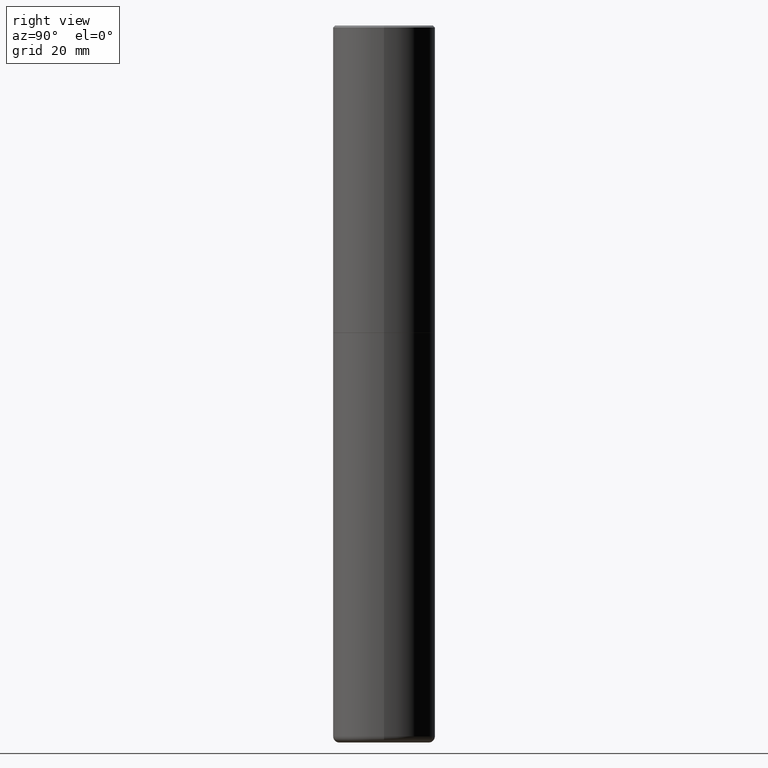
[diagram: clean part render]
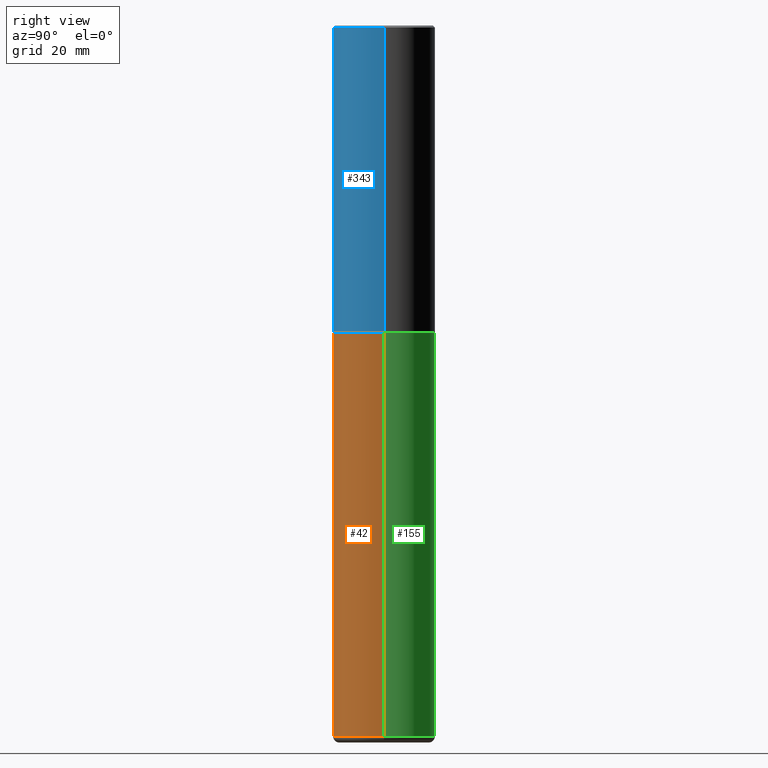
[diagram: same view with three faces highlighted in distinct colors, each labeled with its STEP entity id]
A machine part, right view with three faces highlighted in distinct colors.
Their STEP definitions:

[orange] entity #42 — the highlighted cylindrical surface (partial cylindrical patch) has radius 12.7 mm, axis along (-0, 0, 1).
#7 = DIRECTION ( 'NONE',  ( 1.000000000000000000, -6.982962677686266711E-15, 0.000000000000000000 ) ) ;
#12 = LINE ( 'NONE', #134, #163 ) ;
#16 = VERTEX_POINT ( 'NONE', #216 ) ;
#38 = CARTESIAN_POINT ( 'NONE',  ( 0.5000000000000002220, -2.772236183041456530E-14, -6.939999999999999503 ) ) ;
#42 = ADVANCED_FACE ( 'NONE', ( #105 ), #174, .T. ) ;
#47 = EDGE_CURVE ( 'NONE', #238, #16, #405, .T. ) ;
#51 = AXIS2_PLACEMENT_3D ( 'NONE', #408, #375, #412 ) ;
#52 = VECTOR ( 'NONE', #164, 39.37007874015748143 ) ;
#73 = CIRCLE ( 'NONE', #329, 0.5000000000000001110 ) ;
#79 = ORIENTED_EDGE ( 'NONE', *, *, #240, .F. ) ;
#84 = VERTEX_POINT ( 'NONE', #297 ) ;
#103 = DIRECTION ( 'NONE',  ( -2.445468806185136877E-29, 3.491481338843145188E-15, 1.000000000000000000 ) ) ;
#105 = FACE_OUTER_BOUND ( 'NONE', #150, .T. ) ;
#134 = CARTESIAN_POINT ( 'NONE',  ( -0.5000000000000000000, 3.552713678800500929E-15, -2.459467545127452891E-29 ) ) ;
#141 = CARTESIAN_POINT ( 'NONE',  ( -0.5000000000000000000, -1.379994857524993085E-14, -2.999999999999999556 ) ) ;
#150 = EDGE_LOOP ( 'NONE', ( #79, #342, #293, #400 ) ) ;
#163 = VECTOR ( 'NONE', #103, 39.37007874015748143 ) ;
#164 = DIRECTION ( 'NONE',  ( -2.445468806185136877E-29, 3.491481338843145188E-15, 1.000000000000000000 ) ) ;
#174 = CYLINDRICAL_SURFACE ( 'NONE', #51, 0.5000000000000000000 ) ;
#179 = EDGE_CURVE ( 'NONE', #201, #16, #189, .T. ) ;
#189 = LINE ( 'NONE', #324, #52 ) ;
#201 = VERTEX_POINT ( 'NONE', #38 ) ;
#216 = CARTESIAN_POINT ( 'NONE',  ( 0.5000000000000000000, -1.396592535537256813E-14, -2.999999999999999556 ) ) ;
#238 = VERTEX_POINT ( 'NONE', #141 ) ;
#240 = EDGE_CURVE ( 'NONE', #84, #238, #12, .T. ) ;
#248 = CARTESIAN_POINT ( 'NONE',  ( 1.697155351492484915E-28, -2.423088049157142879E-14, -6.939999999999999503 ) ) ;
#261 = EDGE_CURVE ( 'NONE', #84, #201, #73, .T. ) ;
#264 = DIRECTION ( 'NONE',  ( -2.445468806185136597E-29, 3.491481338843145583E-15, 1.000000000000000000 ) ) ;
#293 = ORIENTED_EDGE ( 'NONE', *, *, #179, .T. ) ;
#297 = CARTESIAN_POINT ( 'NONE',  ( -0.5000000000000002220, -2.067816681277092470E-14, -6.939999999999999503 ) ) ;
#309 = DIRECTION ( 'NONE',  ( 1.000000000000000000, -6.982962677686269077E-15, 0.000000000000000000 ) ) ;
#324 = CARTESIAN_POINT ( 'NONE',  ( 0.5000000000000000000, -3.491481338843133355E-15, 2.438088387897967896E-29 ) ) ;
#329 = AXIS2_PLACEMENT_3D ( 'NONE', #248, #369, #309 ) ;
#342 = ORIENTED_EDGE ( 'NONE', *, *, #261, .T. ) ;
#353 = CARTESIAN_POINT ( 'NONE',  ( 7.336406418555408669E-29, -1.047444401652943478E-14, -2.999999999999999556 ) ) ;
#369 = DIRECTION ( 'NONE',  ( -2.445468806185136597E-29, 3.491481338843145583E-15, 1.000000000000000000 ) ) ;
#371 = AXIS2_PLACEMENT_3D ( 'NONE', #353, #264, #7 ) ;
#375 = DIRECTION ( 'NONE',  ( -2.445468806185136597E-29, 3.491481338843145583E-15, 1.000000000000000000 ) ) ;
#400 = ORIENTED_EDGE ( 'NONE', *, *, #47, .F. ) ;
#405 = CIRCLE ( 'NONE', #371, 0.5000000000000000000 ) ;
#408 = CARTESIAN_POINT ( 'NONE',  ( 0.000000000000000000, 0.000000000000000000, 0.000000000000000000 ) ) ;
#412 = DIRECTION ( 'NONE',  ( 1.000000000000000000, -6.982962677686266711E-15, 4.876176775795935793E-29 ) ) ;

[blue] entity #343 — the highlighted cylindrical surface (partial cylindrical patch) has radius 12.7 mm, axis along (-0, 0, 1).
#10 = DIRECTION ( 'NONE',  ( -2.445468806185136597E-29, 3.491481338843145583E-15, 1.000000000000000000 ) ) ;
#13 = DIRECTION ( 'NONE',  ( -2.445468806185136597E-29, 3.491481338843145583E-15, 1.000000000000000000 ) ) ;
#22 = EDGE_CURVE ( 'NONE', #258, #331, #172, .T. ) ;
#25 = EDGE_CURVE ( 'NONE', #258, #281, #99, .T. ) ;
#44 = CARTESIAN_POINT ( 'NONE',  ( 0.5000000000000002220, -3.491481338843134933E-15, 2.438088387897969017E-29 ) ) ;
#78 = ORIENTED_EDGE ( 'NONE', *, *, #213, .F. ) ;
#93 = DIRECTION ( 'NONE',  ( 1.000000000000000000, -6.982962677686265922E-15, 0.000000000000000000 ) ) ;
#99 = CIRCLE ( 'NONE', #415, 0.5000000000000003331 ) ;
#104 = DIRECTION ( 'NONE',  ( 1.000000000000000000, -6.982962677686266711E-15, 4.876176775795935793E-29 ) ) ;
#109 = CARTESIAN_POINT ( 'NONE',  ( -0.5000000000000003331, -1.717677402183223054E-15, -2.999000000000000110 ) ) ;
#113 = CIRCLE ( 'NONE', #351, 0.5000000000000001110 ) ;
#132 = VECTOR ( 'NONE', #304, 39.37007874015748143 ) ;
#133 = EDGE_LOOP ( 'NONE', ( #136, #146, #187, #78 ) ) ;
#135 = DIRECTION ( 'NONE',  ( 1.000000000000000000, -6.982962677686265922E-15, 0.000000000000000000 ) ) ;
#136 = ORIENTED_EDGE ( 'NONE', *, *, #22, .F. ) ;
#138 = LINE ( 'NONE', #44, #132 ) ;
#146 = ORIENTED_EDGE ( 'NONE', *, *, #25, .T. ) ;
#169 = AXIS2_PLACEMENT_3D ( 'NONE', #367, #10, #104 ) ;
#171 = CARTESIAN_POINT ( 'NONE',  ( 0.5000000000000001110, -3.500078625662629868E-15, -0.02000000000000010797 ) ) ;
#172 = LINE ( 'NONE', #207, #283 ) ;
#187 = ORIENTED_EDGE ( 'NONE', *, *, #410, .T. ) ;
#207 = CARTESIAN_POINT ( 'NONE',  ( -0.5000000000000002220, 3.552713678800502507E-15, -2.459467545127454012E-29 ) ) ;
#213 = EDGE_CURVE ( 'NONE', #331, #395, #113, .T. ) ;
#219 = CARTESIAN_POINT ( 'NONE',  ( -0.5000000000000001110, 3.421651712066270452E-15, -0.02000000000000010797 ) ) ;
#258 = VERTEX_POINT ( 'NONE', #109 ) ;
#262 = CARTESIAN_POINT ( 'NONE',  ( 4.890937612370299433E-31, -6.982962677686328587E-17, -0.02000000000000010797 ) ) ;
#281 = VERTEX_POINT ( 'NONE', #339 ) ;
#283 = VECTOR ( 'NONE', #301, 39.37007874015748143 ) ;
#298 = CYLINDRICAL_SURFACE ( 'NONE', #169, 0.5000000000000002220 ) ;
#301 = DIRECTION ( 'NONE',  ( -2.445468806185136877E-29, 3.491481338843145188E-15, 1.000000000000000000 ) ) ;
#304 = DIRECTION ( 'NONE',  ( -2.445468806185136877E-29, 3.491481338843145188E-15, 1.000000000000000000 ) ) ;
#331 = VERTEX_POINT ( 'NONE', #219 ) ;
#333 = CARTESIAN_POINT ( 'NONE',  ( 7.333960949749225308E-29, -1.047095253519059177E-14, -2.999000000000000110 ) ) ;
#339 = CARTESIAN_POINT ( 'NONE',  ( 0.5000000000000003331, -1.396243387403372828E-14, -2.999000000000000110 ) ) ;
#343 = ADVANCED_FACE ( 'NONE', ( #390 ), #298, .T. ) ;
#351 = AXIS2_PLACEMENT_3D ( 'NONE', #262, #380, #93 ) ;
#367 = CARTESIAN_POINT ( 'NONE',  ( 0.000000000000000000, 0.000000000000000000, 0.000000000000000000 ) ) ;
#380 = DIRECTION ( 'NONE',  ( -2.445468806185136597E-29, 3.491481338843145583E-15, 1.000000000000000000 ) ) ;
#390 = FACE_OUTER_BOUND ( 'NONE', #133, .T. ) ;
#395 = VERTEX_POINT ( 'NONE', #171 ) ;
#410 = EDGE_CURVE ( 'NONE', #281, #395, #138, .T. ) ;
#415 = AXIS2_PLACEMENT_3D ( 'NONE', #333, #13, #135 ) ;

[green] entity #155 — the highlighted cylindrical surface (partial cylindrical patch) has radius 12.7 mm, axis along (-0, 0, 1).
#9 = DIRECTION ( 'NONE',  ( 1.000000000000000000, -6.982962677686269077E-15, 0.000000000000000000 ) ) ;
#12 = LINE ( 'NONE', #134, #163 ) ;
#16 = VERTEX_POINT ( 'NONE', #216 ) ;
#20 = EDGE_LOOP ( 'NONE', ( #276, #247, #108, #43 ) ) ;
#24 = AXIS2_PLACEMENT_3D ( 'NONE', #320, #356, #92 ) ;
#33 = DIRECTION ( 'NONE',  ( -2.445468806185136597E-29, 3.491481338843145583E-15, 1.000000000000000000 ) ) ;
#38 = CARTESIAN_POINT ( 'NONE',  ( 0.5000000000000002220, -2.772236183041456530E-14, -6.939999999999999503 ) ) ;
#43 = ORIENTED_EDGE ( 'NONE', *, *, #179, .F. ) ;
#52 = VECTOR ( 'NONE', #164, 39.37007874015748143 ) ;
#61 = FACE_OUTER_BOUND ( 'NONE', #20, .T. ) ;
#64 = EDGE_CURVE ( 'NONE', #16, #238, #82, .T. ) ;
#67 = DIRECTION ( 'NONE',  ( -2.445468806185136597E-29, 3.491481338843145583E-15, 1.000000000000000000 ) ) ;
#72 = AXIS2_PLACEMENT_3D ( 'NONE', #322, #67, #97 ) ;
#82 = CIRCLE ( 'NONE', #72, 0.5000000000000000000 ) ;
#84 = VERTEX_POINT ( 'NONE', #297 ) ;
#92 = DIRECTION ( 'NONE',  ( 1.000000000000000000, -6.982962677686266711E-15, 4.876176775795935793E-29 ) ) ;
#97 = DIRECTION ( 'NONE',  ( 1.000000000000000000, -6.982962677686266711E-15, 0.000000000000000000 ) ) ;
#103 = DIRECTION ( 'NONE',  ( -2.445468806185136877E-29, 3.491481338843145188E-15, 1.000000000000000000 ) ) ;
#108 = ORIENTED_EDGE ( 'NONE', *, *, #64, .F. ) ;
#134 = CARTESIAN_POINT ( 'NONE',  ( -0.5000000000000000000, 3.552713678800500929E-15, -2.459467545127452891E-29 ) ) ;
#141 = CARTESIAN_POINT ( 'NONE',  ( -0.5000000000000000000, -1.379994857524993085E-14, -2.999999999999999556 ) ) ;
#148 = EDGE_CURVE ( 'NONE', #201, #84, #416, .T. ) ;
#155 = ADVANCED_FACE ( 'NONE', ( #61 ), #162, .T. ) ;
#162 = CYLINDRICAL_SURFACE ( 'NONE', #24, 0.5000000000000000000 ) ;
#163 = VECTOR ( 'NONE', #103, 39.37007874015748143 ) ;
#164 = DIRECTION ( 'NONE',  ( -2.445468806185136877E-29, 3.491481338843145188E-15, 1.000000000000000000 ) ) ;
#179 = EDGE_CURVE ( 'NONE', #201, #16, #189, .T. ) ;
#189 = LINE ( 'NONE', #324, #52 ) ;
#201 = VERTEX_POINT ( 'NONE', #38 ) ;
#216 = CARTESIAN_POINT ( 'NONE',  ( 0.5000000000000000000, -1.396592535537256813E-14, -2.999999999999999556 ) ) ;
#238 = VERTEX_POINT ( 'NONE', #141 ) ;
#240 = EDGE_CURVE ( 'NONE', #84, #238, #12, .T. ) ;
#247 = ORIENTED_EDGE ( 'NONE', *, *, #240, .T. ) ;
#276 = ORIENTED_EDGE ( 'NONE', *, *, #148, .T. ) ;
#297 = CARTESIAN_POINT ( 'NONE',  ( -0.5000000000000002220, -2.067816681277092470E-14, -6.939999999999999503 ) ) ;
#320 = CARTESIAN_POINT ( 'NONE',  ( 0.000000000000000000, 0.000000000000000000, 0.000000000000000000 ) ) ;
#322 = CARTESIAN_POINT ( 'NONE',  ( 7.336406418555408669E-29, -1.047444401652943478E-14, -2.999999999999999556 ) ) ;
#324 = CARTESIAN_POINT ( 'NONE',  ( 0.5000000000000000000, -3.491481338843133355E-15, 2.438088387897967896E-29 ) ) ;
#352 = CARTESIAN_POINT ( 'NONE',  ( 1.697155351492484915E-28, -2.423088049157142879E-14, -6.939999999999999503 ) ) ;
#356 = DIRECTION ( 'NONE',  ( -2.445468806185136597E-29, 3.491481338843145583E-15, 1.000000000000000000 ) ) ;
#393 = AXIS2_PLACEMENT_3D ( 'NONE', #352, #33, #9 ) ;
#416 = CIRCLE ( 'NONE', #393, 0.5000000000000001110 ) ;